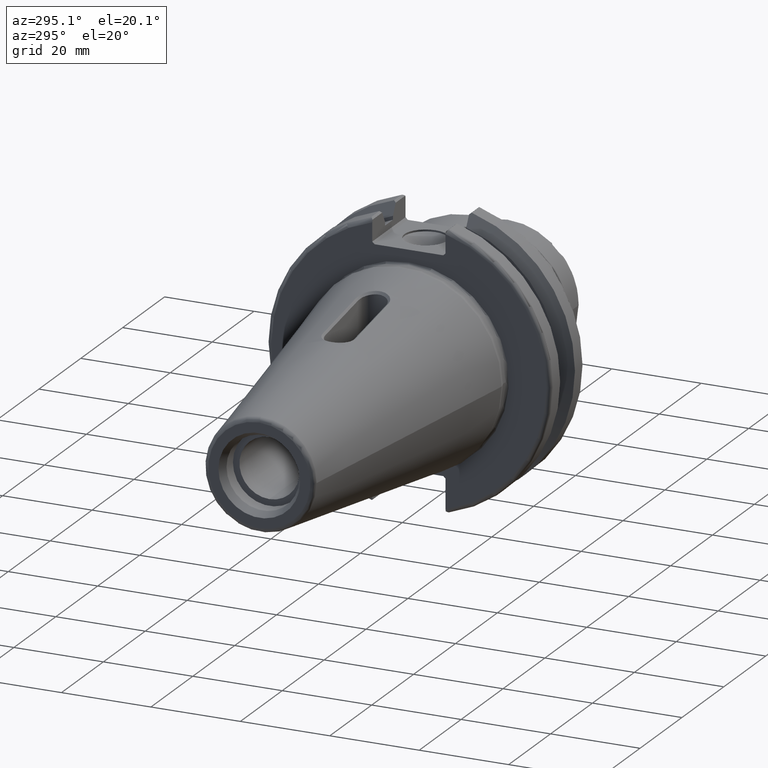
[diagram: clean part render]
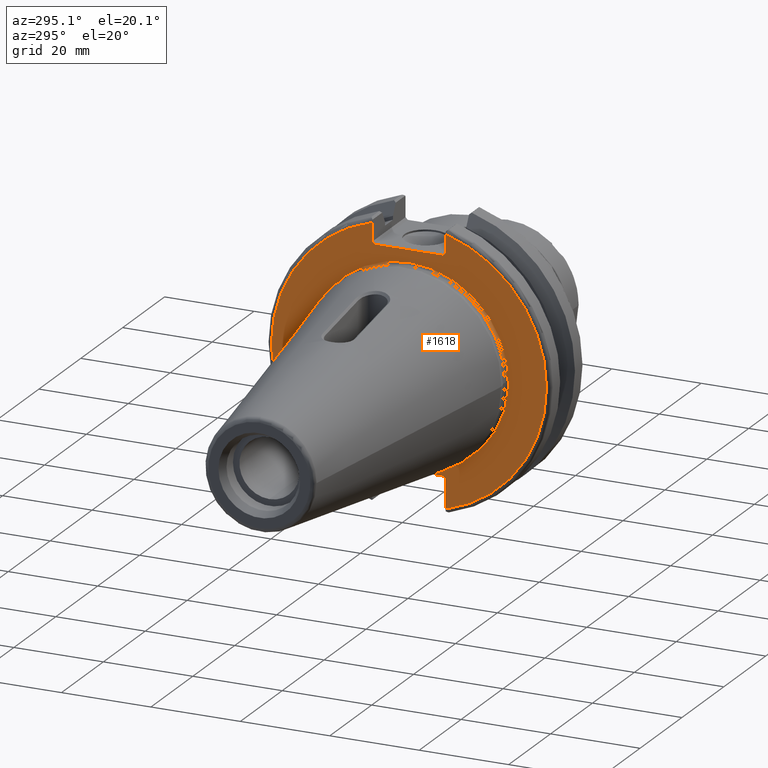
[diagram: same view with one face highlighted and labeled with its STEP entity id]
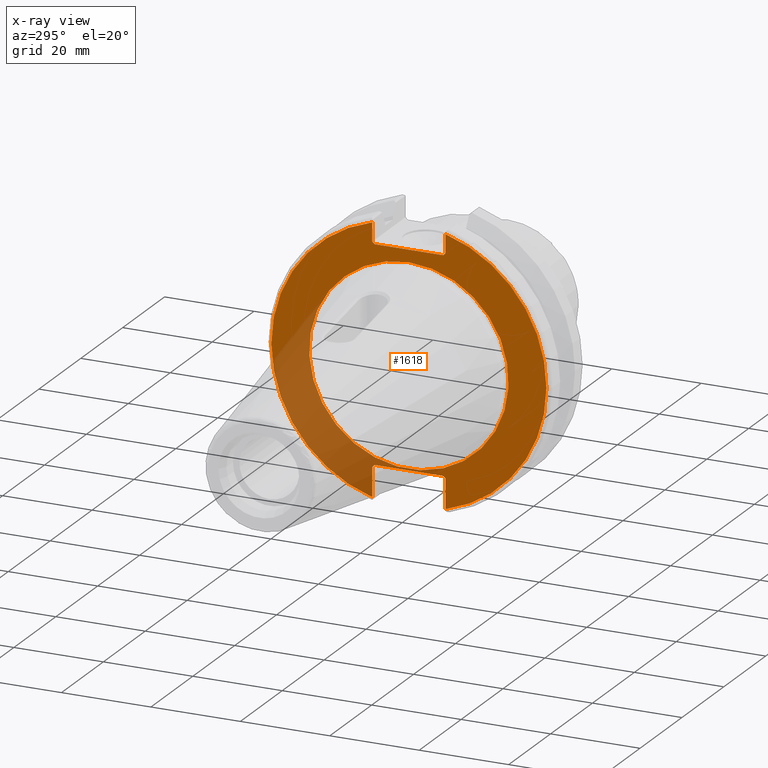
[diagram: x-ray of the same camera — body ghosted, the highlighted face saturated]
A machine part, auxiliary view. The second image highlights one B-rep face of the part: STEP entity #1618.
The next image is the same camera in x-ray: the body ghosted, the highlighted face saturated — about 26% of this face is hidden behind the body in this view.
In plain terms, the highlighted planar face has unit normal (-1, 0, 0).
Its self-contained STEP definition (entity closure, byte-faithful):
#143=FACE_BOUND('',#322,.T.);
#156=PLANE('',#1755);
#226=FACE_OUTER_BOUND('',#321,.T.);
#321=EDGE_LOOP('',(#1319,#1320,#1321,#1322,#1323,#1324,#1325,#1326,#1327,
#1328,#1329,#1330));
#322=EDGE_LOOP('',(#1331));
#425=LINE('',#3158,#531);
#426=LINE('',#3160,#532);
#427=LINE('',#3162,#533);
#428=LINE('',#3164,#534);
#429=LINE('',#3166,#535);
#430=LINE('',#3170,#536);
#431=LINE('',#3172,#537);
#432=LINE('',#3174,#538);
#433=LINE('',#3176,#539);
#434=LINE('',#3177,#540);
#531=VECTOR('',#2023,10.);
#532=VECTOR('',#2024,10.);
#533=VECTOR('',#2025,10.);
#534=VECTOR('',#2026,10.);
#535=VECTOR('',#2027,10.);
#536=VECTOR('',#2030,10.);
#537=VECTOR('',#2031,10.);
#538=VECTOR('',#2032,10.);
#539=VECTOR('',#2033,10.);
#540=VECTOR('',#2034,10.);
#620=CIRCLE('',#1753,22.3);
#622=CIRCLE('',#1756,30.75);
#623=CIRCLE('',#1757,30.75);
#742=VERTEX_POINT('',#3149);
#743=VERTEX_POINT('',#3154);
#744=VERTEX_POINT('',#3155);
#745=VERTEX_POINT('',#3157);
#746=VERTEX_POINT('',#3159);
#747=VERTEX_POINT('',#3161);
#748=VERTEX_POINT('',#3163);
#749=VERTEX_POINT('',#3165);
#750=VERTEX_POINT('',#3167);
#751=VERTEX_POINT('',#3169);
#752=VERTEX_POINT('',#3171);
#753=VERTEX_POINT('',#3173);
#754=VERTEX_POINT('',#3175);
#949=EDGE_CURVE('',#742,#742,#620,.T.);
#951=EDGE_CURVE('',#743,#744,#622,.T.);
#952=EDGE_CURVE('',#743,#745,#425,.T.);
#953=EDGE_CURVE('',#746,#745,#426,.T.);
#954=EDGE_CURVE('',#746,#747,#427,.T.);
#955=EDGE_CURVE('',#748,#747,#428,.T.);
#956=EDGE_CURVE('',#748,#749,#429,.T.);
#957=EDGE_CURVE('',#750,#749,#623,.T.);
#958=EDGE_CURVE('',#750,#751,#430,.T.);
#959=EDGE_CURVE('',#752,#751,#431,.T.);
#960=EDGE_CURVE('',#752,#753,#432,.T.);
#961=EDGE_CURVE('',#754,#753,#433,.T.);
#962=EDGE_CURVE('',#754,#744,#434,.T.);
#1319=ORIENTED_EDGE('',*,*,#951,.F.);
#1320=ORIENTED_EDGE('',*,*,#952,.T.);
#1321=ORIENTED_EDGE('',*,*,#953,.F.);
#1322=ORIENTED_EDGE('',*,*,#954,.T.);
#1323=ORIENTED_EDGE('',*,*,#955,.F.);
#1324=ORIENTED_EDGE('',*,*,#956,.T.);
#1325=ORIENTED_EDGE('',*,*,#957,.F.);
#1326=ORIENTED_EDGE('',*,*,#958,.T.);
#1327=ORIENTED_EDGE('',*,*,#959,.F.);
#1328=ORIENTED_EDGE('',*,*,#960,.T.);
#1329=ORIENTED_EDGE('',*,*,#961,.F.);
#1330=ORIENTED_EDGE('',*,*,#962,.T.);
#1331=ORIENTED_EDGE('',*,*,#949,.F.);
#1618=ADVANCED_FACE('',(#226,#143),#156,.T.);
#1753=AXIS2_PLACEMENT_3D('',#3151,#2015,#2016);
#1755=AXIS2_PLACEMENT_3D('',#3153,#2019,#2020);
#1756=AXIS2_PLACEMENT_3D('',#3156,#2021,#2022);
#1757=AXIS2_PLACEMENT_3D('',#3168,#2028,#2029);
#2015=DIRECTION('center_axis',(-1.,0.,0.));
#2016=DIRECTION('ref_axis',(0.,-1.,1.83697019872103E-16));
#2019=DIRECTION('center_axis',(-1.,0.,0.));
#2020=DIRECTION('ref_axis',(0.,0.,1.));
#2021=DIRECTION('center_axis',(1.,0.,0.));
#2022=DIRECTION('ref_axis',(0.,-1.,1.60812264967664E-16));
#2023=DIRECTION('',(0.,0.,-1.));
#2024=DIRECTION('',(0.,-0.70710678118655,0.707106781186545));
#2025=DIRECTION('',(0.,1.,0.));
#2026=DIRECTION('',(0.,-0.707106781186549,-0.707106781186546));
#2027=DIRECTION('',(0.,0.,1.));
#2028=DIRECTION('center_axis',(1.,0.,0.));
#2029=DIRECTION('ref_axis',(0.,1.,1.60812264967664E-16));
#2030=DIRECTION('',(0.,0.,1.));
#2031=DIRECTION('',(0.,0.707106781186549,-0.707106781186546));
#2032=DIRECTION('',(0.,-1.,0.));
#2033=DIRECTION('',(0.,0.707106781186549,0.707106781186546));
#2034=DIRECTION('',(0.,0.,-1.));
#3149=CARTESIAN_POINT('',(3.175,-2.7309623620986E-15,22.3));
#3151=CARTESIAN_POINT('Origin',(3.175,0.,0.));
#3153=CARTESIAN_POINT('Origin',(3.175,31.75,0.));
#3154=CARTESIAN_POINT('',(3.175,-8.18999999999999,29.6392712461019));
#3155=CARTESIAN_POINT('',(3.175,-8.19,-29.6392712461019));
#3156=CARTESIAN_POINT('Origin',(3.175,0.,0.));
#3157=CARTESIAN_POINT('',(3.175,-8.18999999999999,25.5));
#3158=CARTESIAN_POINT('',(3.175,-8.18999999999999,12.5));
#3159=CARTESIAN_POINT('',(3.175,-7.68999999999999,25.));
#3160=CARTESIAN_POINT('',(3.175,8.29500000000007,9.01500000000004));
#3161=CARTESIAN_POINT('',(3.175,7.69,25.));
#3162=CARTESIAN_POINT('',(3.175,15.875,25.));
#3163=CARTESIAN_POINT('',(3.175,8.19,25.5));
#3164=CARTESIAN_POINT('',(3.175,7.58000000000002,24.89));
#3165=CARTESIAN_POINT('',(3.175,8.19,29.6392712461019));
#3166=CARTESIAN_POINT('',(3.175,8.19,12.5));
#3167=CARTESIAN_POINT('',(3.175,8.18999999999999,-29.6392712461019));
#3168=CARTESIAN_POINT('Origin',(3.175,0.,0.));
#3169=CARTESIAN_POINT('',(3.175,8.18999999999999,-23.1));
#3170=CARTESIAN_POINT('',(3.175,8.18999999999999,-11.3));
#3171=CARTESIAN_POINT('',(3.175,7.69,-22.6));
#3172=CARTESIAN_POINT('',(3.175,8.18000000000002,-23.09));
#3173=CARTESIAN_POINT('',(3.175,-7.69,-22.6));
#3174=CARTESIAN_POINT('',(3.175,15.875,-22.6));
#3175=CARTESIAN_POINT('',(3.175,-8.19,-23.1));
#3176=CARTESIAN_POINT('',(3.175,7.69500000000004,-7.21500000000002));
#3177=CARTESIAN_POINT('',(3.175,-8.19,-11.3));